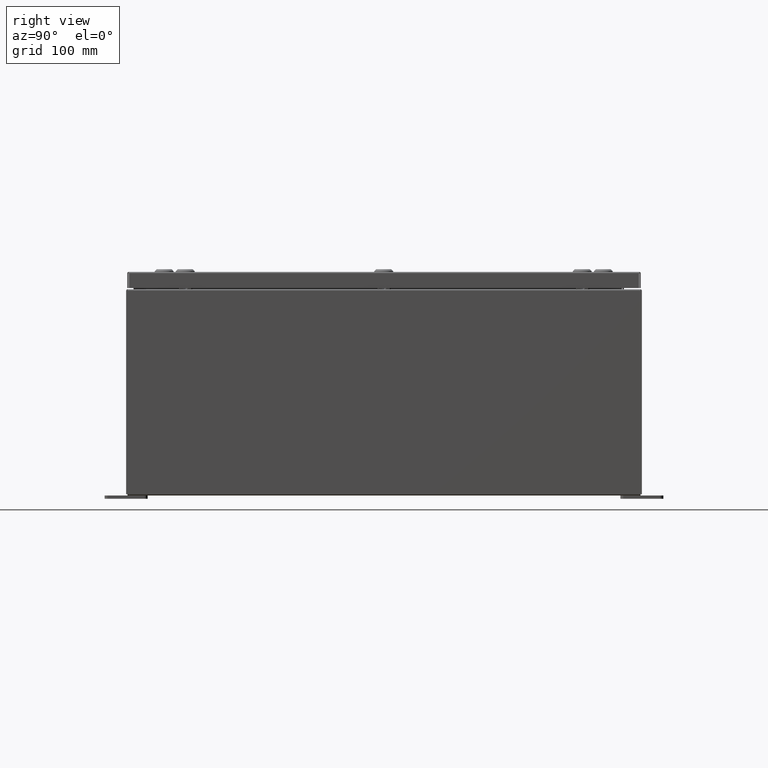
[diagram: clean part render]
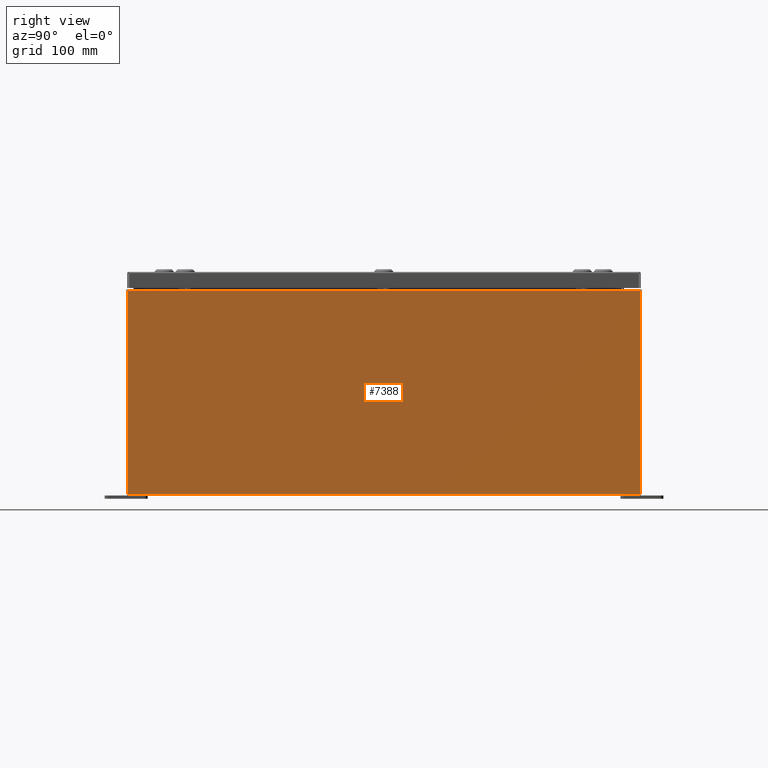
[diagram: same view with one face highlighted and labeled with its STEP entity id]
A machine part, right view. The second image highlights one B-rep face of the part: STEP entity #7388.
In plain terms, the highlighted planar face has unit normal (-1, 0, 0).
Its self-contained STEP definition (entity closure, byte-faithful):
#2569 = EDGE_CURVE ( 'NONE', #30912, #45727, #9770, .T. ) ;
#2787 = DIRECTION ( 'NONE',  ( 3.482016343714355100E-015, 0.0000000000000000000, 1.000000000000000000 ) ) ;
#6538 = CARTESIAN_POINT ( 'NONE',  ( 11.99999999999999600, -14.92530000000000000, 0.01299999999999997900 ) ) ;
#7382 = CARTESIAN_POINT ( 'NONE',  ( 11.99999999999999600, 0.0000000000000000000, -4.204500978058383300E-014 ) ) ;
#7388 = ADVANCED_FACE ( 'NONE', ( #62986 ), #10396, .F. ) ;
#9770 = LINE ( 'NONE', #12115, #59390 ) ;
#10396 = PLANE ( 'NONE',  #15575 ) ;
#10517 = LINE ( 'NONE', #32590, #22251 ) ;
#10687 = VERTEX_POINT ( 'NONE', #43226 ) ;
#11564 = VECTOR ( 'NONE', #53981, 39.37007874015748100 ) ;
#11857 = CARTESIAN_POINT ( 'NONE',  ( 12.00000000000003700, 14.92529999999999800, 11.83760000000000000 ) ) ;
#12115 = CARTESIAN_POINT ( 'NONE',  ( 11.99999999999999600, -14.92530000000000000, -3.930973933138173100E-014 ) ) ;
#13410 = VERTEX_POINT ( 'NONE', #55653 ) ;
#15219 = CARTESIAN_POINT ( 'NONE',  ( 12.00000000000003700, -14.92529999999999800, 11.83760000000000000 ) ) ;
#15575 = AXIS2_PLACEMENT_3D ( 'NONE', #7382, #16101, #2787 ) ;
#16101 = DIRECTION ( 'NONE',  ( -1.000000000000000000, 0.0000000000000000000, 3.482016343714355100E-015 ) ) ;
#18844 = DIRECTION ( 'NONE',  ( -3.482016343714355500E-015, -1.832640180902292400E-016, -1.000000000000000000 ) ) ;
#21900 = DIRECTION ( 'NONE',  ( -0.0000000000000000000, -1.000000000000000000, -0.0000000000000000000 ) ) ;
#22251 = VECTOR ( 'NONE', #37350, 39.37007874015748100 ) ;
#23795 = ORIENTED_EDGE ( 'NONE', *, *, #56573, .T. ) ;
#24543 = EDGE_CURVE ( 'NONE', #13410, #10687, #24825, .T. ) ;
#24825 = LINE ( 'NONE', #58727, #11564 ) ;
#28713 = ORIENTED_EDGE ( 'NONE', *, *, #24543, .T. ) ;
#30912 = VERTEX_POINT ( 'NONE', #15219 ) ;
#32590 = CARTESIAN_POINT ( 'NONE',  ( 11.99999999999999600, -14.92529999999999800, 0.01299999999999984700 ) ) ;
#33822 = EDGE_CURVE ( 'NONE', #13410, #45727, #10517, .T. ) ;
#37350 = DIRECTION ( 'NONE',  ( 2.549319440810500300E-031, -1.000000000000000000, 7.321388497823869400E-017 ) ) ;
#43226 = CARTESIAN_POINT ( 'NONE',  ( 12.00000000000003700, 14.92529999999999800, 11.83760000000000000 ) ) ;
#44055 = ORIENTED_EDGE ( 'NONE', *, *, #33822, .F. ) ;
#45727 = VERTEX_POINT ( 'NONE', #6538 ) ;
#46594 = ORIENTED_EDGE ( 'NONE', *, *, #2569, .T. ) ;
#53981 = DIRECTION ( 'NONE',  ( 3.482016343714355500E-015, -1.832640180902292400E-016, 1.000000000000000000 ) ) ;
#55653 = CARTESIAN_POINT ( 'NONE',  ( 11.99999999999999600, 14.92529999999999800, 0.01299999999999766100 ) ) ;
#56172 = VECTOR ( 'NONE', #21900, 39.37007874015748100 ) ;
#56573 = EDGE_CURVE ( 'NONE', #10687, #30912, #57751, .T. ) ;
#57751 = LINE ( 'NONE', #11857, #56172 ) ;
#58727 = CARTESIAN_POINT ( 'NONE',  ( 11.99999999999999600, 14.92530000000000000, -3.930973933138173100E-014 ) ) ;
#59390 = VECTOR ( 'NONE', #18844, 39.37007874015748100 ) ;
#59639 = EDGE_LOOP ( 'NONE', ( #23795, #46594, #44055, #28713 ) ) ;
#62986 = FACE_OUTER_BOUND ( 'NONE', #59639, .T. ) ;